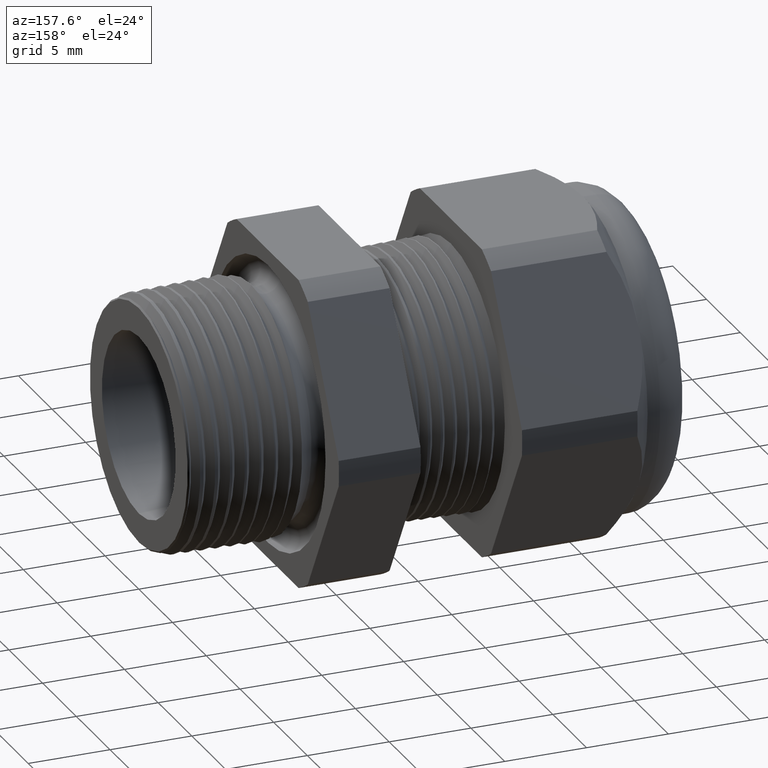
[diagram: clean part render]
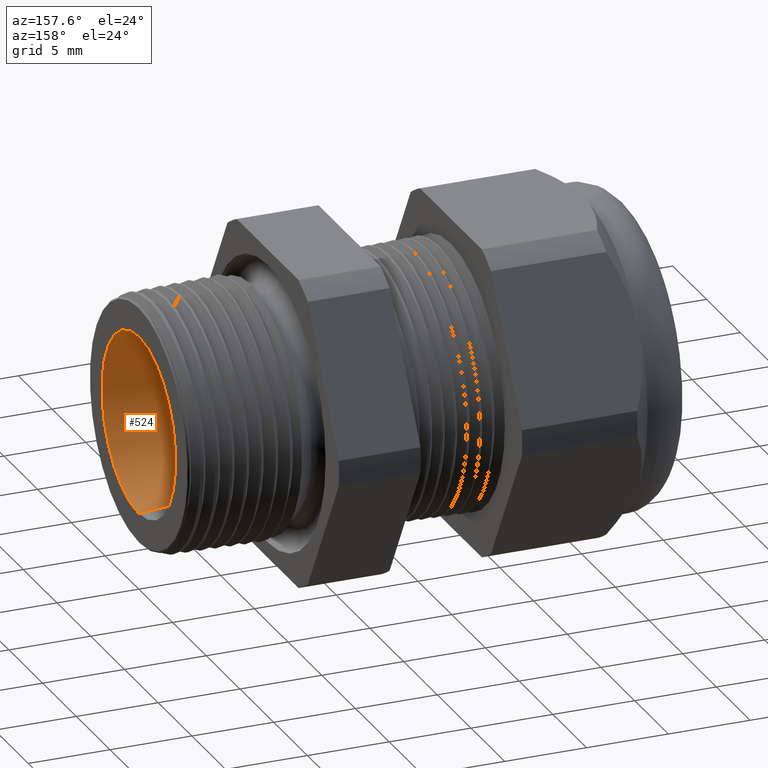
[diagram: same view with one face highlighted and labeled with its STEP entity id]
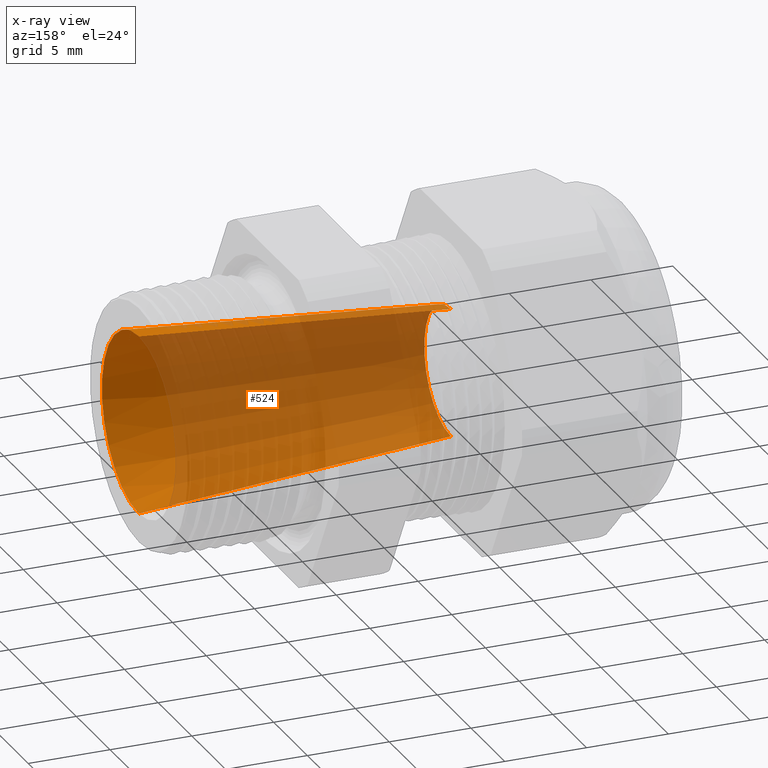
[diagram: x-ray of the same camera — body ghosted, the highlighted face saturated]
A machine part, auxiliary view. The second image highlights one B-rep face of the part: STEP entity #524.
The next image is the same camera in x-ray: the body ghosted, the highlighted face saturated — about 79% of this face is hidden behind the body in this view.
In plain terms, the highlighted conical surface has half-angle 4.594 deg.
Its self-contained STEP definition (entity closure, byte-faithful):
#467 = VERTEX_POINT ( 'NONE', #2170 ) ;
#469 = EDGE_CURVE ( 'NONE', #467, #521, #2232, .T. ) ;
#508 = EDGE_CURVE ( 'NONE', #521, #532, #2282, .T. ) ;
#521 = VERTEX_POINT ( 'NONE', #2318 ) ;
#524 = ADVANCED_FACE ( 'NONE', ( #2313 ), #2312, .F. ) ;
#525 = EDGE_LOOP ( 'NONE', ( #526, #527, #530, #534 ) ) ;
#526 = ORIENTED_EDGE ( 'NONE', *, *, #469, .F. ) ;
#527 = ORIENTED_EDGE ( 'NONE', *, *, #528, .T. ) ;
#528 = EDGE_CURVE ( 'NONE', #467, #529, #2311, .T. ) ;
#529 = VERTEX_POINT ( 'NONE', #2303 ) ;
#530 = ORIENTED_EDGE ( 'NONE', *, *, #531, .T. ) ;
#531 = EDGE_CURVE ( 'NONE', #529, #532, #2302, .T. ) ;
#532 = VERTEX_POINT ( 'NONE', #2357 ) ;
#534 = ORIENTED_EDGE ( 'NONE', *, *, #508, .F. ) ;
#2170 = CARTESIAN_POINT ( 'NONE',  ( -0.7508661417322833900, 2.267665485113262000E-017, 0.1550000000000000000 ) ) ;
#2228 = DIRECTION ( 'NONE',  ( 0.0000000000000000000, 0.0000000000000000000, -1.000000000000000000 ) ) ;
#2229 = DIRECTION ( 'NONE',  ( 1.000000000000000000, 0.0000000000000000000, 0.0000000000000000000 ) ) ;
#2230 = CARTESIAN_POINT ( 'NONE',  ( -0.7508661417322833900, 0.0000000000000000000, 0.0000000000000000000 ) ) ;
#2231 = AXIS2_PLACEMENT_3D ( 'NONE', #2230, #2229, #2228 ) ;
#2232 = CIRCLE ( 'NONE', #2231, 0.1550000000000000000 ) ;
#2279 = DIRECTION ( 'NONE',  ( 0.9967868727108976100, 0.0000000000000000000, -0.08009950306480641300 ) ) ;
#2280 = VECTOR ( 'NONE', #2279, 39.37007874015748900 ) ;
#2281 = CARTESIAN_POINT ( 'NONE',  ( -0.7508661417322833900, 0.0000000000000000000, -0.1550000000000000000 ) ) ;
#2282 = LINE ( 'NONE', #2281, #2280 ) ;
#2298 = DIRECTION ( 'NONE',  ( 0.0000000000000000000, 0.0000000000000000000, -1.000000000000000000 ) ) ;
#2299 = DIRECTION ( 'NONE',  ( 1.000000000000000000, 0.0000000000000000000, 0.0000000000000000000 ) ) ;
#2300 = CARTESIAN_POINT ( 'NONE',  ( 0.0000000000000000000, 0.0000000000000000000, 0.0000000000000000000 ) ) ;
#2301 = AXIS2_PLACEMENT_3D ( 'NONE', #2300, #2299, #2298 ) ;
#2302 = CIRCLE ( 'NONE', #2301, 0.2153378781036457400 ) ;
#2303 = CARTESIAN_POINT ( 'NONE',  ( 0.0000000000000000000, 2.637128431548127100E-017, 0.2153378781036457400 ) ) ;
#2304 = DIRECTION ( 'NONE',  ( 0.9967868727108976100, 9.809360004160878300E-018, 0.08009950306480641300 ) ) ;
#2305 = VECTOR ( 'NONE', #2304, 39.37007874015748900 ) ;
#2306 = CARTESIAN_POINT ( 'NONE',  ( -0.7508661417322833900, 1.898202538678397300E-017, 0.1550000000000000000 ) ) ;
#2307 = DIRECTION ( 'NONE',  ( 0.0000000000000000000, 0.0000000000000000000, -1.000000000000000000 ) ) ;
#2308 = DIRECTION ( 'NONE',  ( 1.000000000000000000, 0.0000000000000000000, 0.0000000000000000000 ) ) ;
#2309 = CARTESIAN_POINT ( 'NONE',  ( -0.7508661417322833900, 0.0000000000000000000, 0.0000000000000000000 ) ) ;
#2310 = AXIS2_PLACEMENT_3D ( 'NONE', #2309, #2308, #2307 ) ;
#2311 = LINE ( 'NONE', #2306, #2305 ) ;
#2312 = CONICAL_SURFACE ( 'NONE', #2310, 0.1550000000000000000, 0.08018540344487304300 ) ;
#2313 = FACE_OUTER_BOUND ( 'NONE', #525, .T. ) ;
#2318 = CARTESIAN_POINT ( 'NONE',  ( -0.7508661417322833900, 0.0000000000000000000, -0.1550000000000000000 ) ) ;
#2357 = CARTESIAN_POINT ( 'NONE',  ( 0.0000000000000000000, 0.0000000000000000000, -0.2153378781036457400 ) ) ;